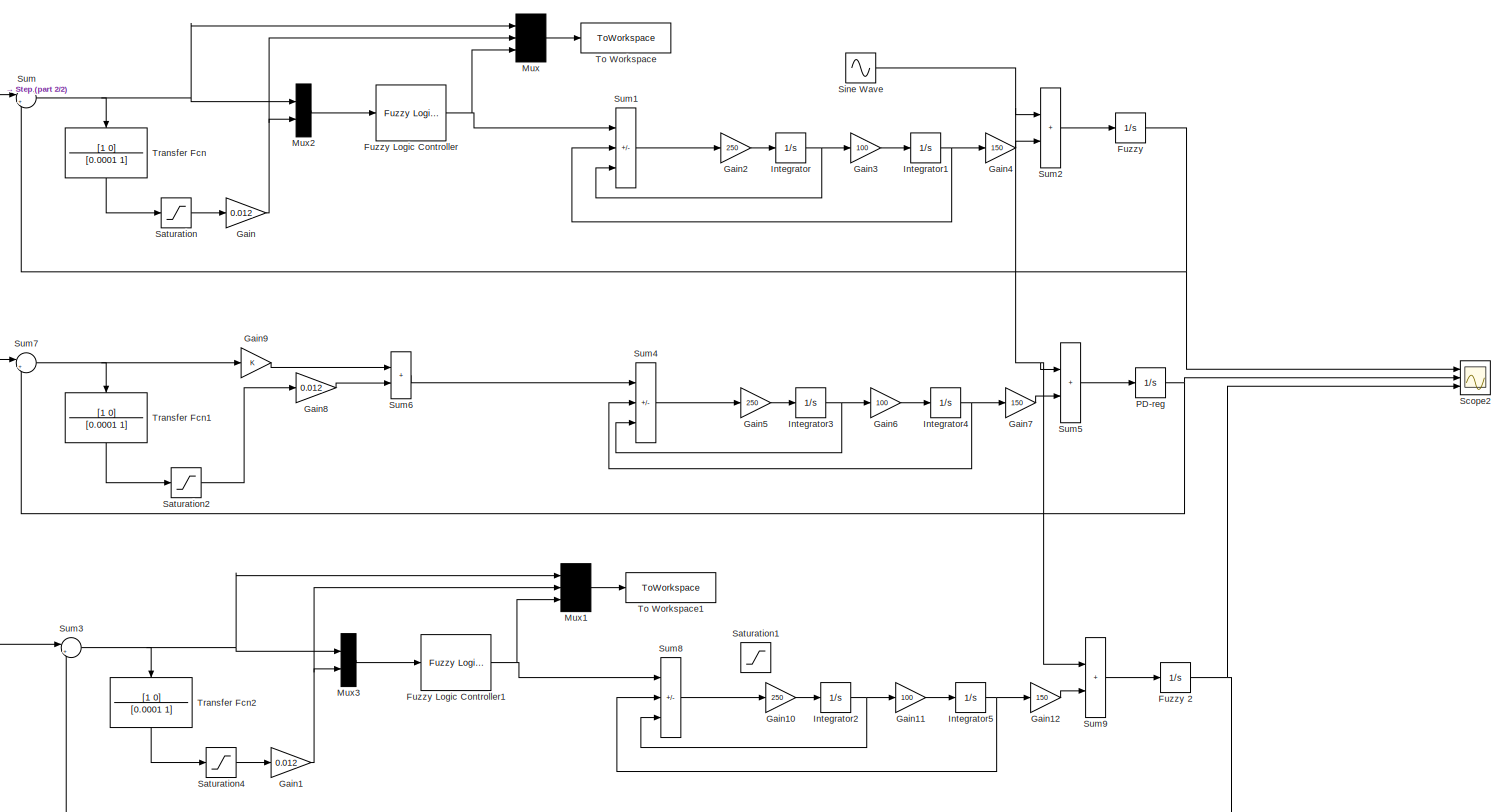
[diagram: root canvas - part 1/2, most of the canvas]
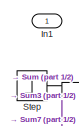
[diagram: root canvas - part 2/2, top left region]
MODEL slx_a6405dec0943
KIND model
CONFIG AbsTol = auto
CONFIG EnableMultiTasking = off
CONFIG FixedStep = 1e-4
CONFIG MaxStep = auto
CONFIG MinStep = auto
CONFIG RelTol = 1e-3
CONFIG SampleTimeConstraint = Unconstrained
CONFIG SolverName = FixedStepAuto
CONFIG StartTime = 0.0
CONFIG StopTime = 0.7
BLOCK [Integrator] Fuzzy
  Ports = [1, 1]
BLOCK [Integrator] Fuzzy 2
  Ports = [1, 1]
BLOCK [Reference] Fuzzy Logic Controller  REF=fuzblock/Fuzzy Logic   (lib defined in mdl_858b3b3e7478)
Controller
  Ports = [1, 1]
  SourceBlock = fuzblock/Fuzzy Logic \nController
  SourceProductBaseCode = FL
  SourceType = Fuzzy Inference System
BLOCK [Reference] Fuzzy Logic Controller1  REF=fuzblock/Fuzzy Logic   (lib defined in mdl_858b3b3e7478)
Controller
  Ports = [1, 1]
  SourceBlock = fuzblock/Fuzzy Logic \nController
  SourceProductBaseCode = FL
  SourceType = Fuzzy Inference System
BLOCK [Gain] Gain
  Gain = 0.012
BLOCK [Gain] Gain1
  Gain = 0.012
BLOCK [Gain] Gain10
  Gain = 250
BLOCK [Gain] Gain11
  Gain = 100
BLOCK [Gain] Gain12
  Gain = 150
BLOCK [Gain] Gain2
  Gain = 250
BLOCK [Gain] Gain3
  Gain = 100
BLOCK [Gain] Gain4
  Gain = 150
BLOCK [Gain] Gain5
  Gain = 250
BLOCK [Gain] Gain6
  Gain = 100
BLOCK [Gain] Gain7
  Gain = 150
BLOCK [Gain] Gain8
  Gain = 0.012
BLOCK [Gain] Gain9
BLOCK [Inport] In1
BLOCK [Integrator] Integrator
  Ports = [1, 1]
BLOCK [Integrator] Integrator1
  Ports = [1, 1]
BLOCK [Integrator] Integrator2
  Ports = [1, 1]
BLOCK [Integrator] Integrator3
  Ports = [1, 1]
BLOCK [Integrator] Integrator4
  Ports = [1, 1]
BLOCK [Integrator] Integrator5
  Ports = [1, 1]
BLOCK [Mux] Mux
  Commented = on
  Inputs = 3
  Ports = [3, 1]
BLOCK [Mux] Mux1
  Commented = on
  Inputs = 3
  Ports = [3, 1]
BLOCK [Mux] Mux2
  Inputs = 2
  Ports = [2, 1]
BLOCK [Mux] Mux3
  Inputs = 2
  Ports = [2, 1]
BLOCK [Integrator] PD-reg
  Ports = [1, 1]
BLOCK [Saturate] Saturation
BLOCK [Saturate] Saturation1
  Commented = on
  LinearizeAsGain = off
  LowerLimit = -0.15
  UpperLimit = 0.15
BLOCK [Saturate] Saturation2
BLOCK [Saturate] Saturation4
BLOCK [Scope] Scope2
  Floating = off
  NumInputPorts = 3
  Ports = [3]
  ScopeSpecificationString = Simulink.scopes.TimeScopeBlockCfg('CurrentConfiguration', extmgr.ConfigurationSet(extmgr.Configuration('Core','General UI',true,'FigureColor',[1 1 1]),extmgr.Configuration('Core','Source UI',true),extmgr.Configuration('Sources','WiredSimulink',true,'DataLoggingVariableName','ScopeData1'),extmgr.Configuration('Visuals','Time Domain',true,'SerializedDisplays',{struct('MinYLimReal','-0.80374','MaxYLi...<+1737ch>
BLOCK [Sin] Sine Wave
  Amplitude = 50
  Frequency = 50
  Ports = [0, 1]
  SampleTime = 0
BLOCK [Step] Step
  SampleTime = 0
  Time = 0
BLOCK [Sum] Sum
  Inputs = |+-
  Ports = [2, 1]
BLOCK [Sum] Sum1
  IconShape = rectangular
  Inputs = +--
  Ports = [3, 1]
BLOCK [Sum] Sum2
  IconShape = rectangular
  Ports = [2, 1]
BLOCK [Sum] Sum3
  Inputs = |+-
  Ports = [2, 1]
BLOCK [Sum] Sum4
  IconShape = rectangular
  Inputs = +--
  Ports = [3, 1]
BLOCK [Sum] Sum5
  IconShape = rectangular
  Ports = [2, 1]
BLOCK [Sum] Sum6
  IconShape = rectangular
  Ports = [2, 1]
BLOCK [Sum] Sum7
  Inputs = |+-
  Ports = [2, 1]
BLOCK [Sum] Sum8
  IconShape = rectangular
  Inputs = +--
  Ports = [3, 1]
BLOCK [Sum] Sum9
  IconShape = rectangular
  Ports = [2, 1]
BLOCK [ToWorkspace] To Workspace
  Commented = on
  FixptAsFi = on
  MaxDataPoints = inf
  Ports = [1]
  SampleTime = -1
  SaveFormat = Timeseries
  VariableName = vf
BLOCK [ToWorkspace] To Workspace1
  Commented = on
  FixptAsFi = on
  MaxDataPoints = inf
  Ports = [1]
  SampleTime = -1
  SaveFormat = Timeseries
  VariableName = vf1
BLOCK [TransferFcn] Transfer Fcn
  Denominator = [0.0001 1]
  NameLocation = left
  Numerator = [1 0]
BLOCK [TransferFcn] Transfer Fcn1
  Denominator = [0.0001 1]
  NameLocation = left
  Numerator = [1 0]
BLOCK [TransferFcn] Transfer Fcn2
  Denominator = [0.0001 1]
  NameLocation = left
  Numerator = [1 0]
NET Fuzzy 2:1 -> Scope2:3, Sum3:2
NET Fuzzy Logic Controller1:1 -> Mux1:3, Sum8:1
NET Fuzzy Logic Controller:1 -> Mux:3, Sum1:1
NET Fuzzy:1 -> Scope2:1, Sum:2
LINE Gain10:1 -> Integrator2:1
LINE Gain11:1 -> Integrator5:1
LINE Gain12:1 -> Sum9:2
NET Gain1:1 -> Mux1:2, Mux3:2
LINE Gain2:1 -> Integrator:1
LINE Gain3:1 -> Integrator1:1
LINE Gain4:1 -> Sum2:2
LINE Gain5:1 -> Integrator3:1
LINE Gain6:1 -> Integrator4:1
LINE Gain7:1 -> Sum5:2
LINE Gain8:1 -> Sum6:2
LINE Gain9:1 -> Sum6:1
NET Gain:1 -> Mux2:2, Mux:2
NET Integrator1:1 -> Gain4:1, Sum1:2
NET Integrator2:1 -> Gain11:1, Sum8:3
NET Integrator3:1 -> Gain6:1, Sum4:3
NET Integrator4:1 -> Gain7:1, Sum4:2
NET Integrator5:1 -> Gain12:1, Sum8:2
NET Integrator:1 -> Gain3:1, Sum1:3
LINE Mux1:1 -> To Workspace1:1
LINE Mux2:1 -> Fuzzy Logic Controller:1
LINE Mux3:1 -> Fuzzy Logic Controller1:1
LINE Mux:1 -> To Workspace:1
NET PD-reg:1 -> Scope2:2, Sum7:2
LINE Saturation2:1 -> Gain8:1
LINE Saturation4:1 -> Gain1:1
LINE Saturation:1 -> Gain:1
NET Sine Wave:1 -> Sum2:1, Sum5:1, Sum9:1
NET Step:1 -> Sum3:1, Sum7:1, Sum:1
LINE Sum1:1 -> Gain2:1
LINE Sum2:1 -> Fuzzy:1
NET Sum3:1 -> Mux1:1, Mux3:1, Transfer Fcn2:1
LINE Sum4:1 -> Gain5:1
LINE Sum5:1 -> PD-reg:1
LINE Sum6:1 -> Sum4:1
NET Sum7:1 -> Gain9:1, Transfer Fcn1:1
LINE Sum8:1 -> Gain10:1
LINE Sum9:1 -> Fuzzy 2:1
NET Sum:1 -> Mux2:1, Mux:1, Transfer Fcn:1
LINE Transfer Fcn1:1 -> Saturation2:1
LINE Transfer Fcn2:1 -> Saturation4:1
LINE Transfer Fcn:1 -> Saturation:1
note: NET lines group one-source signal fan-out (src -> all destinations, sorted); 1:1 wires keep LINE
